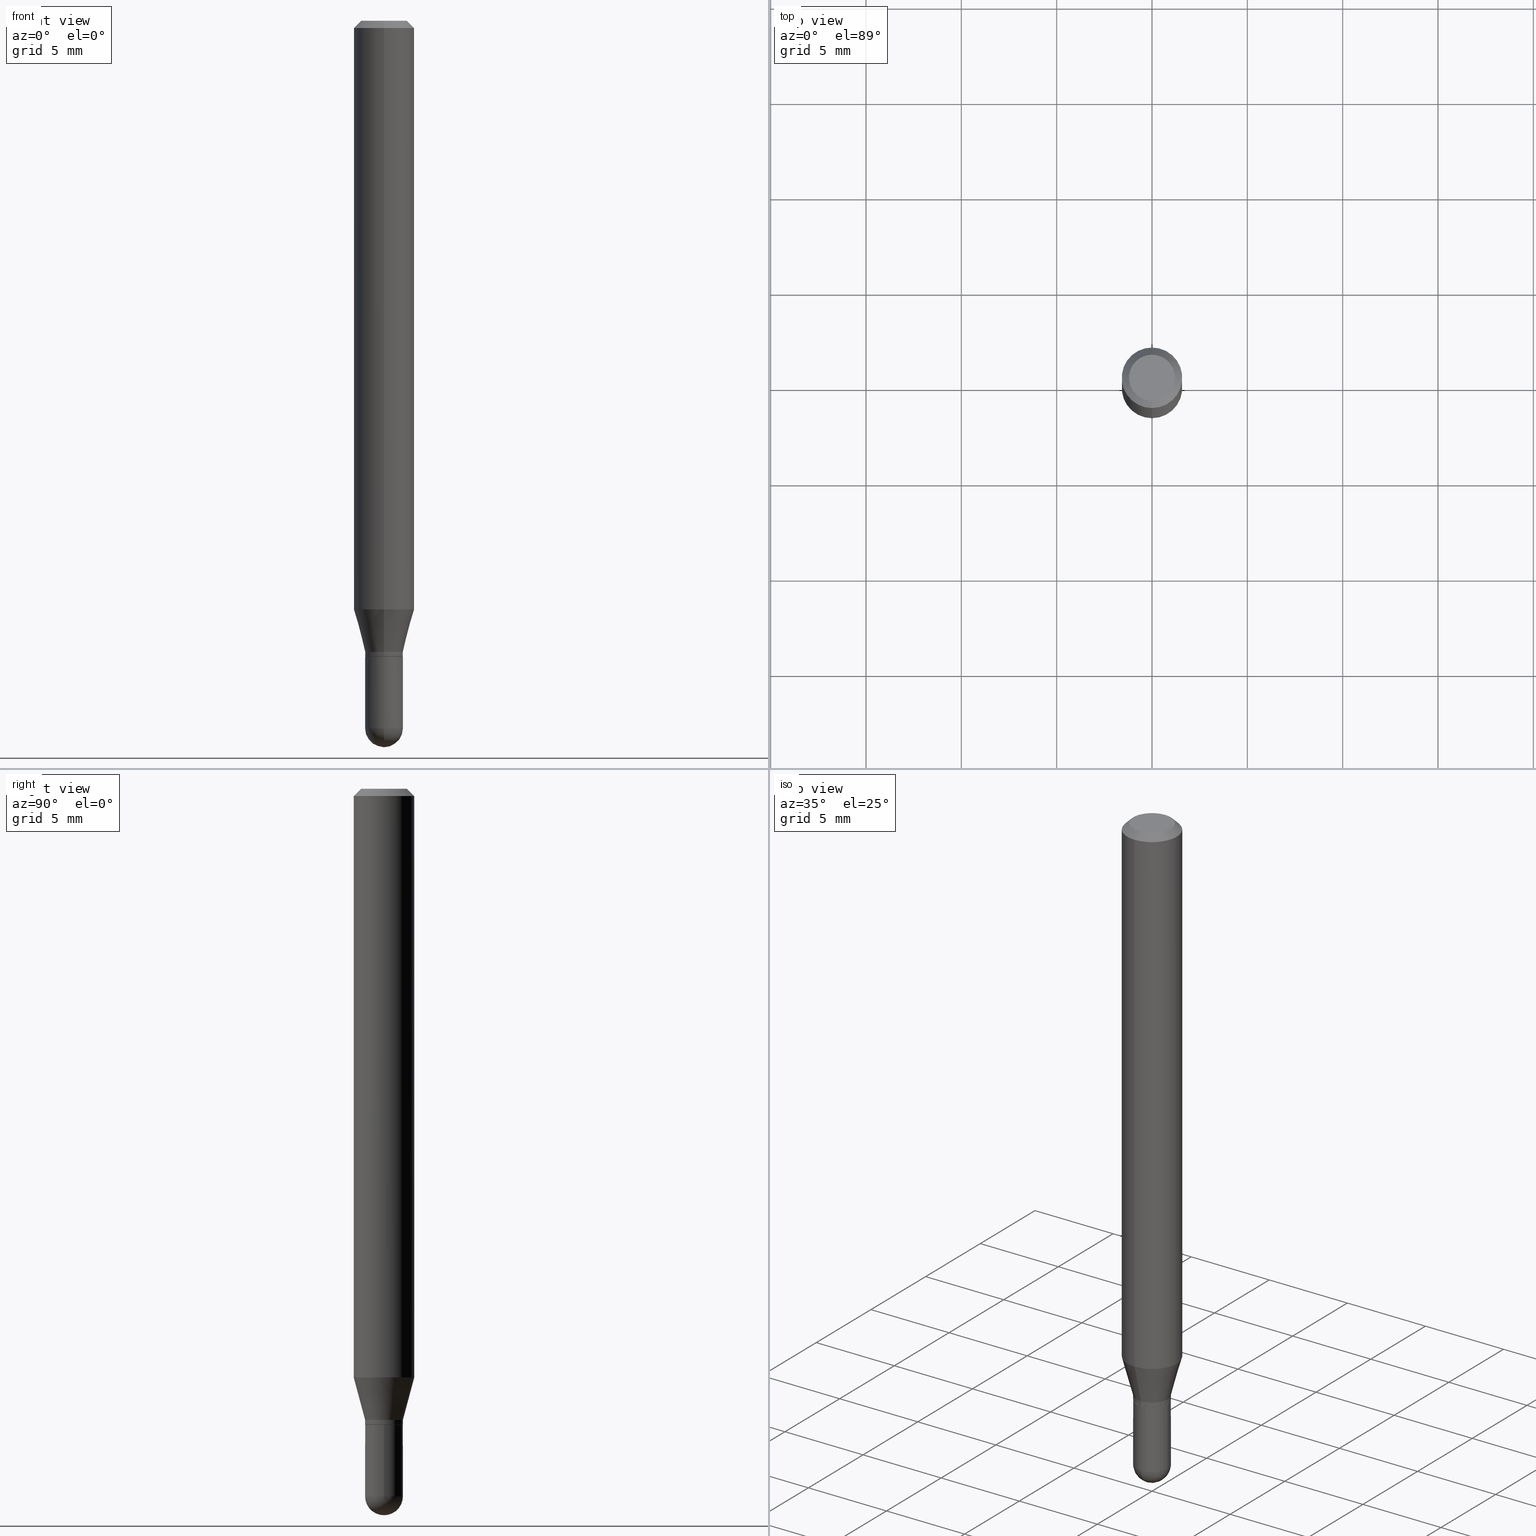
[diagram: canonical four-view strip — front | top / right | iso, engineering-drawing reading convention]
A machine part, canonical four-view strip (front | top / right | iso — engineering-drawing reading convention). The complete STEP part file that produces these views, byte-faithful:
ISO-10303-21;
HEADER;
FILE_DESCRIPTION (( 'STEP AP203' ),
    '1' );
FILE_NAME ('30110.STEP',
    '2024-03-08T15:18:05',
    ( '' ),
    ( '' ),
    'SwSTEP 2.0',
    'SolidWorks 2023',
    '' );
FILE_SCHEMA (( 'CONFIG_CONTROL_DESIGN' ));
ENDSEC;

DATA;
#1 = CARTESIAN_POINT ( 'NONE',  ( 3.663194072738837225E-29, -5.244395376890724291E-15, -1.500000000000000444 ) ) ;
#2 = VERTEX_POINT ( 'NONE', #47 ) ;
#3 = AXIS2_PLACEMENT_3D ( 'NONE', #484, #481, #261 ) ;
#4 = DATE_AND_TIME ( #456, #305 ) ;
#5 = ORIENTED_EDGE ( 'NONE', *, *, #62, .T. ) ;
#6 = CIRCLE ( 'NONE', #299, 0.06250000000000001388 ) ;
#7 = ORIENTED_EDGE ( 'NONE', *, *, #210, .F. ) ;
#8 = ORIENTED_EDGE ( 'NONE', *, *, #85, .T. ) ;
#9 = ORIENTED_EDGE ( 'NONE', *, *, #203, .T. ) ;
#10 = CARTESIAN_POINT ( 'NONE',  ( -4.364351673553621364E-16, -0.06250000000000427436, -1.215483408562511025 ) ) ;
#11 = VERTEX_POINT ( 'NONE', #164 ) ;
#12 = EDGE_LOOP ( 'NONE', ( #469, #436, #351, #120 ) ) ;
#13 = DIRECTION ( 'NONE',  ( -2.445715240831873182E-29, 3.491128430402830124E-15, 1.000000000000000000 ) ) ;
#14 = ADVANCED_BREP_SHAPE_REPRESENTATION ( '30110', ( #88, #76, #500 ), #306 ) ;
#15 = AXIS2_PLACEMENT_3D ( 'NONE', #209, #465, #86 ) ;
#16 = DIRECTION ( 'NONE',  ( -2.445715240831873182E-29, 3.491128430402830124E-15, 1.000000000000000000 ) ) ;
#17 = COORDINATED_UNIVERSAL_TIME_OFFSET ( 5, 0, .BEHIND. ) ;
#18 = ADVANCED_FACE ( 'NONE', ( #512 ), #82, .F. ) ;
#19 = DIRECTION ( 'NONE',  ( -6.982962677686265922E-15, -1.000000000000000000, 0.000000000000000000 ) ) ;
#20 = APPROVAL_ROLE ( '' ) ;
#21 = CARTESIAN_POINT ( 'NONE',  ( 3.210001253591834077E-29, -4.582106064903715326E-15, -1.312500000000000222 ) ) ;
#22 = APPROVAL_STATUS ( 'not_yet_approved' ) ;
#23 = CIRCLE ( 'NONE', #430, 0.03905000000000000832 ) ;
#24 = CARTESIAN_POINT ( 'NONE',  ( -2.691932112247734171E-16, -0.03855000000000458060, -1.313000000000000389 ) ) ;
#25 = PRODUCT_DEFINITION ( 'UNKNOWN', '', #178, #155 ) ;
#26 = PERSON_AND_ORGANIZATION ( #113, #370 ) ;
#27 = ORIENTED_EDGE ( 'NONE', *, *, #329, .F. ) ;
#28 = CARTESIAN_POINT ( 'NONE',  ( 3.211224111212249912E-29, -4.583851629118917536E-15, -1.313000000000000389 ) ) ;
#29 = CARTESIAN_POINT ( 'NONE',  ( 2.774669383143552228E-16, 0.03904999999999496374, -1.460950000000000193 ) ) ;
#30 = DIRECTION ( 'NONE',  ( -6.982962677686265922E-15, -1.000000000000000000, 0.000000000000000000 ) ) ;
#31 = AXIS2_PLACEMENT_3D ( 'NONE', #290, #220, #95 ) ;
#32 = UNCERTAINTY_MEASURE_WITH_UNIT (LENGTH_MEASURE( 1.000000000000000082E-05 ), #81, 'distance_accuracy_value', 'NONE');
#33 = AXIS2_PLACEMENT_3D ( 'NONE', #160, #429, #213 ) ;
#34 = CONICAL_SURFACE ( 'NONE', #186, 0.06250000000000001388, 0.7853981633974473908 ) ;
#35 = CARTESIAN_POINT ( 'NONE',  ( 3.211224111212249912E-29, -4.583851629118917536E-15, -1.313000000000000389 ) ) ;
#36 = ADVANCED_FACE ( 'NONE', ( #42 ), #72, .T. ) ;
#37 = ORIENTED_EDGE ( 'NONE', *, *, #453, .T. ) ;
#38 = PLANE ( 'NONE',  #279 ) ;
#39 = ORIENTED_EDGE ( 'NONE', *, *, #449, .F. ) ;
#40 = ADVANCED_FACE ( 'NONE', ( #285 ), #94, .T. ) ;
#41 =( NAMED_UNIT ( * ) PLANE_ANGLE_UNIT ( ) SI_UNIT ( $, .RADIAN. ) );
#42 = FACE_OUTER_BOUND ( 'NONE', #51, .T. ) ;
#43 = APPROVAL ( #22, 'UNSPECIFIED' ) ;
#44 = CIRCLE ( 'NONE', #332, 0.06250000000000000000 ) ;
#45 = EDGE_CURVE ( 'NONE', #464, #211, #501, .T. ) ;
#46 = DIRECTION ( 'NONE',  ( -2.445468806185136597E-29, 3.491481338843145583E-15, 1.000000000000000000 ) ) ;
#47 = CARTESIAN_POINT ( 'NONE',  ( 4.440892098500924943E-16, 0.06249999999999995837, -0.01500000000000057711 ) ) ;
#48 = DIRECTION ( 'NONE',  ( -6.982962677686265922E-15, -1.000000000000000000, 3.491128430402830124E-15 ) ) ;
#49 = ORIENTED_EDGE ( 'NONE', *, *, #459, .T. ) ;
#50 = PERSON_AND_ORGANIZATION ( #113, #370 ) ;
#51 = EDGE_LOOP ( 'NONE', ( #395, #310, #399, #241 ) ) ;
#52 = DIRECTION ( 'NONE',  ( -6.982962677686265922E-15, -1.000000000000000000, 0.000000000000000000 ) ) ;
#53 = ORIENTED_EDGE ( 'NONE', *, *, #258, .T. ) ;
#54 = ORIENTED_EDGE ( 'NONE', *, *, #232, .F. ) ;
#55 = CARTESIAN_POINT ( 'NONE',  ( 0.000000000000000000, 0.000000000000000000, 0.000000000000000000 ) ) ;
#56 = EDGE_CURVE ( 'NONE', #11, #427, #326, .T. ) ;
#57 = ORIENTED_EDGE ( 'NONE', *, *, #380, .F. ) ;
#58 = ORIENTED_EDGE ( 'NONE', *, *, #472, .F. ) ;
#59 = DIRECTION ( 'NONE',  ( -2.445468806185136877E-29, 3.491481338843145188E-15, 1.000000000000000000 ) ) ;
#60 = LINE ( 'NONE', #292, #215 ) ;
#61 = CIRCLE ( 'NONE', #245, 0.03905000000000000138 ) ;
#62 = EDGE_CURVE ( 'NONE', #427, #11, #385, .T. ) ;
#63 = VECTOR ( 'NONE', #511, 39.37007874015748143 ) ;
#64 = CARTESIAN_POINT ( 'NONE',  ( 8.758191564929115309E-45, -1.250185265265728213E-30, -3.581034872216010807E-16 ) ) ;
#65 = AXIS2_PLACEMENT_3D ( 'NONE', #318, #91, #52 ) ;
#66 = COORDINATED_UNIVERSAL_TIME_OFFSET ( 5, 0, .BEHIND. ) ;
#67 = CARTESIAN_POINT ( 'NONE',  ( -2.726846925636181991E-16, -0.03905000000000474758, -1.303000000000000380 ) ) ;
#68 = APPROVAL_ROLE ( '' ) ;
#69 = CARTESIAN_POINT ( 'NONE',  ( -2.726846925636500494E-16, -0.03905000000000019567, 1.363285652072311966E-16 ) ) ;
#70 = CALENDAR_DATE ( 2024, 8, 3 ) ;
#71 = FACE_OUTER_BOUND ( 'NONE', #176, .T. ) ;
#72 = CONICAL_SURFACE ( 'NONE', #283, 0.06250000000000001388, 0.7853981633974473908 ) ;
#73 = EDGE_CURVE ( 'NONE', #388, #282, #298, .T. ) ;
#74 = DIRECTION ( 'NONE',  ( 2.438088387897960049E-29, -3.491481338843145188E-15, -1.000000000000000000 ) ) ;
#75 = DIRECTION ( 'NONE',  ( -6.982962677686265133E-15, -1.000000000000000000, 0.000000000000000000 ) ) ;
#76 = MANIFOLD_SOLID_BREP ( 'Body-Move/Copy2[2]', #161 ) ;
#77 = DIRECTION ( 'NONE',  ( -2.445715240831873463E-29, 3.491128430402830124E-15, 1.000000000000000000 ) ) ;
#78 = AXIS2_PLACEMENT_3D ( 'NONE', #328, #331, #224 ) ;
#79 = AXIS2_PLACEMENT_3D ( 'NONE', #366, #13, #177 ) ;
#80 = PRODUCT_DEFINITION_SHAPE ( 'NONE', 'NONE',  #25 ) ;
#81 =( CONVERSION_BASED_UNIT ( 'INCH', #316 ) LENGTH_UNIT ( ) NAMED_UNIT ( #243 ) );
#82 = PLANE ( 'NONE',  #223 ) ;
#83 = EDGE_CURVE ( 'NONE', #426, #137, #136, .T. ) ;
#84 = ORIENTED_EDGE ( 'NONE', *, *, #278, .T. ) ;
#85 = EDGE_CURVE ( 'NONE', #388, #381, #60, .T. ) ;
#86 = DIRECTION ( 'NONE',  ( 1.000000000000000000, -6.982962677686266711E-15, 0.000000000000000000 ) ) ;
#87 = ORIENTED_EDGE ( 'NONE', *, *, #486, .T. ) ;
#88 = MANIFOLD_SOLID_BREP ( 'Body-Move/Copy2[1]', #121 ) ;
#89 = PRODUCT_RELATED_PRODUCT_CATEGORY ( 'detail', '', ( #200 ) ) ;
#90 = DIRECTION ( 'NONE',  ( -4.937700262164674260E-15, -0.7071067811865632269, 0.7071067811865319186 ) ) ;
#91 = DIRECTION ( 'NONE',  ( -1.000000000000000000, 6.982962677686265922E-15, -4.883557194083112340E-29 ) ) ;
#92 = DIRECTION ( 'NONE',  ( -6.982962677686265133E-15, -1.000000000000000000, 0.000000000000000000 ) ) ;
#93 = VERTEX_POINT ( 'NONE', #441 ) ;
#94 = SPHERICAL_SURFACE ( 'NONE', #33, 0.03905000000000012628 ) ;
#95 = DIRECTION ( 'NONE',  ( 1.000000000000000000, -6.982962677686265133E-15, 0.000000000000000000 ) ) ;
#96 = ORIENTED_EDGE ( 'NONE', *, *, #122, .F. ) ;
#97 = ORIENTED_EDGE ( 'NONE', *, *, #100, .F. ) ;
#98 = DIRECTION ( 'NONE',  ( -6.982962677686265922E-15, -1.000000000000000000, 3.483106191921934765E-15 ) ) ;
#99 = DIRECTION ( 'NONE',  ( -1.807323732225331323E-15, -0.2588190451025183525, 0.9659258262890689783 ) ) ;
#100 = EDGE_CURVE ( 'NONE', #507, #211, #23, .T. ) ;
#101 = DIRECTION ( 'NONE',  ( -6.982962677686265922E-15, -1.000000000000000000, 0.000000000000000000 ) ) ;
#102 = AXIS2_PLACEMENT_3D ( 'NONE', #21, #443, #101 ) ;
#103 = FACE_OUTER_BOUND ( 'NONE', #168, .T. ) ;
#104 = AXIS2_PLACEMENT_3D ( 'NONE', #502, #493, #304 ) ;
#105 = DATE_AND_TIME ( #70, #458 ) ;
#106 = DIRECTION ( 'NONE',  ( -2.445715240831873182E-29, 3.491128430402830124E-15, 1.000000000000000000 ) ) ;
#107 = MECHANICAL_CONTEXT ( 'NONE', #126, 'mechanical' ) ;
#108 = EDGE_CURVE ( 'NONE', #252, #249, #256, .T. ) ;
#109 = DIRECTION ( 'NONE',  ( -6.982962677686265922E-15, -1.000000000000000000, 3.491128430402830124E-15 ) ) ;
#110 = APPROVAL_PERSON_ORGANIZATION ( #227, #272, #20 ) ;
#111 = EDGE_LOOP ( 'NONE', ( #58, #454, #49, #314 ) ) ;
#112 = CARTESIAN_POINT ( 'NONE',  ( 3.840629472727450339E-16, 0.04750000000000004219, -5.239320876657356674E-16 ) ) ;
#113 = PERSON ( 'UNSPECIFIED', 'UNSPECIFIED', 'UNSPECIFIED', ('UNSPECIFIED'), ('UNSPECIFIED'), ('UNSPECIFIED') ) ;
#114 = VERTEX_POINT ( 'NONE', #410 ) ;
#115 = CARTESIAN_POINT ( 'NONE',  ( -2.726846925636134167E-16, -0.03905000000000517085, -1.460950000000000193 ) ) ;
#116 = ADVANCED_FACE ( 'NONE', ( #407 ), #255, .T. ) ;
#117 = DIRECTION ( 'NONE',  ( 1.000000000000000000, -6.982962677686265133E-15, 0.000000000000000000 ) ) ;
#118 = CARTESIAN_POINT ( 'NONE',  ( 3.569368228036930558E-29, -5.105661907733563837E-15, -1.460950000000000193 ) ) ;
#119 = AXIS2_PLACEMENT_3D ( 'NONE', #270, #422, #75 ) ;
#120 = ORIENTED_EDGE ( 'NONE', *, *, #134, .T. ) ;
#121 = CLOSED_SHELL ( 'NONE', ( #162, #40, #333, #496, #116 ) ) ;
#122 = EDGE_CURVE ( 'NONE', #211, #388, #322, .T. ) ;
#123 = DIRECTION ( 'NONE',  ( -2.445715240831873182E-29, 3.491128430402830124E-15, 1.000000000000000000 ) ) ;
#124 = ORIENTED_EDGE ( 'NONE', *, *, #482, .T. ) ;
#125 = DIRECTION ( 'NONE',  ( -2.445468806185136877E-29, 3.491481338843145188E-15, 1.000000000000000000 ) ) ;
#126 = APPLICATION_CONTEXT ( 'configuration controlled 3d designs of mechanical parts and assemblies' ) ;
#127 = DIRECTION ( 'NONE',  ( 2.445715240831872622E-29, -3.491128430402830124E-15, -1.000000000000000000 ) ) ;
#128 = CARTESIAN_POINT ( 'NONE',  ( -2.726846925636188894E-16, -0.03905000000000491411, -1.312500000000000222 ) ) ;
#129 = EDGE_LOOP ( 'NONE', ( #446, #239 ) ) ;
#130 = AXIS2_PLACEMENT_3D ( 'NONE', #163, #435, #313 ) ;
#131 = ORIENTED_EDGE ( 'NONE', *, *, #73, .T. ) ;
#132 = CARTESIAN_POINT ( 'NONE',  ( 3.668572861247897004E-31, -5.236692645604369505E-17, -0.01500000000000035853 ) ) ;
#133 = DIRECTION ( 'NONE',  ( 1.000000000000000000, -6.982962677686265133E-15, 0.000000000000000000 ) ) ;
#134 = EDGE_CURVE ( 'NONE', #2, #244, #383, .T. ) ;
#135 = DIRECTION ( 'NONE',  ( -2.445468806185136597E-29, 3.491481338843145583E-15, 1.000000000000000000 ) ) ;
#136 = LINE ( 'NONE', #67, #425 ) ;
#137 = VERTEX_POINT ( 'NONE', #10 ) ;
#138 = FACE_OUTER_BOUND ( 'NONE', #384, .T. ) ;
#139 = APPROVAL_DATE_TIME ( #264, #247 ) ;
#140 = FACE_OUTER_BOUND ( 'NONE', #483, .T. ) ;
#141 = COORDINATED_UNIVERSAL_TIME_OFFSET ( 5, 0, .BEHIND. ) ;
#142 = CIRCLE ( 'NONE', #214, 0.03905000000000000832 ) ;
#143 = CARTESIAN_POINT ( 'NONE',  ( 3.186766958803931544E-29, -4.548940344814889109E-15, -1.303000000000000380 ) ) ;
#144 = DATE_TIME_ROLE ( 'creation_date' ) ;
#145 = ADVANCED_FACE ( 'NONE', ( #402 ), #492, .T. ) ;
#146 = CARTESIAN_POINT ( 'NONE',  ( 3.572707652396175485E-29, -5.100879661982893620E-15, -1.460950000000000193 ) ) ;
#147 = APPROVAL_STATUS ( 'not_yet_approved' ) ;
#148 = FACE_OUTER_BOUND ( 'NONE', #111, .T. ) ;
#149 = APPLICATION_CONTEXT ( 'configuration controlled 3d designs of mechanical parts and assemblies' ) ;
#150 = CC_DESIGN_SECURITY_CLASSIFICATION ( #400, ( #178 ) ) ;
#151 = CC_DESIGN_PERSON_AND_ORGANIZATION_ASSIGNMENT ( #50, #262, ( #178 ) ) ;
#152 = DIRECTION ( 'NONE',  ( -6.982962677686265133E-15, -1.000000000000000000, 0.000000000000000000 ) ) ;
#153 = ADVANCED_FACE ( 'NONE', ( #103 ), #375, .T. ) ;
#154 = DIRECTION ( 'NONE',  ( -2.445715240831873182E-29, 3.491128430402830124E-15, 1.000000000000000000 ) ) ;
#155 = DESIGN_CONTEXT ( 'detailed design', #149, 'design' ) ;
#156 = ORIENTED_EDGE ( 'NONE', *, *, #56, .F. ) ;
#157 = EDGE_CURVE ( 'NONE', #249, #252, #291, .T. ) ;
#158 = CARTESIAN_POINT ( 'NONE',  ( -0.03905000000000000832, 2.774669383143191817E-16, -1.920844152744540988E-30 ) ) ;
#159 = AXIS2_PLACEMENT_3D ( 'NONE', #55, #174, #216 ) ;
#160 = CARTESIAN_POINT ( 'NONE',  ( 3.569368228036930558E-29, -5.105661907733563837E-15, -1.460950000000000193 ) ) ;
#161 = CLOSED_SHELL ( 'NONE', ( #202, #248, #36, #170, #145, #153, #294, #289, #18, #405, #225, #367 ) ) ;
#162 = ADVANCED_FACE ( 'NONE', ( #140 ), #219, .T. ) ;
#163 = CARTESIAN_POINT ( 'NONE',  ( 3.569368228036930558E-29, -5.105661907733563837E-15, -1.460950000000000193 ) ) ;
#164 = CARTESIAN_POINT ( 'NONE',  ( 2.774669383143515743E-16, 0.03904999999999547722, -1.312500000000000222 ) ) ;
#165 = CARTESIAN_POINT ( 'NONE',  ( 0.03905000000000000832, -5.115282022505621222E-15, -1.460950000000000193 ) ) ;
#166 = DIRECTION ( 'NONE',  ( 6.982962677686265922E-15, 1.000000000000000000, -3.491128430402830124E-15 ) ) ;
#167 = CARTESIAN_POINT ( 'NONE',  ( 3.211224111212249912E-29, -4.583851629118917536E-15, -1.313000000000000389 ) ) ;
#168 = EDGE_LOOP ( 'NONE', ( #477, #53, #275, #207 ) ) ;
#169 = AXIS2_PLACEMENT_3D ( 'NONE', #445, #16, #364 ) ;
#170 = ADVANCED_FACE ( 'NONE', ( #414 ), #295, .T. ) ;
#171 = AXIS2_PLACEMENT_3D ( 'NONE', #417, #74, #233 ) ;
#172 = APPLICATION_PROTOCOL_DEFINITION ( 'international standard', 'config_control_design', 1994, #149 ) ;
#173 = ORIENTED_EDGE ( 'NONE', *, *, #56, .T. ) ;
#174 = DIRECTION ( 'NONE',  ( -2.445468806185136597E-29, 3.491481338843145583E-15, 1.000000000000000000 ) ) ;
#175 = EDGE_CURVE ( 'NONE', #137, #114, #296, .T. ) ;
#176 = EDGE_LOOP ( 'NONE', ( #84, #87, #394, #57 ) ) ;
#177 = DIRECTION ( 'NONE',  ( -6.982962677686265922E-15, -1.000000000000000000, 4.370956789862821150E-15 ) ) ;
#178 = PRODUCT_DEFINITION_FORMATION_WITH_SPECIFIED_SOURCE ( 'ANY', '', #200, .NOT_KNOWN. ) ;
#179 = VECTOR ( 'NONE', #125, 39.37007874015748143 ) ;
#180 = CARTESIAN_POINT ( 'NONE',  ( -4.287811248607204268E-16, -0.06250000000000006939, -0.01500000000000014169 ) ) ;
#181 = SECURITY_CLASSIFICATION_LEVEL ( 'unclassified' ) ;
#182 = CARTESIAN_POINT ( 'NONE',  ( 3.186766958803931544E-29, -4.548940344814889109E-15, -1.303000000000000380 ) ) ;
#183 = APPROVAL_DATE_TIME ( #4, #43 ) ;
#184 = CARTESIAN_POINT ( 'NONE',  ( -3.773273898774342241E-16, -0.04750000000000004219, -1.922748867774664941E-16 ) ) ;
#185 = APPLICATION_PROTOCOL_DEFINITION ( 'international standard', 'config_control_design', 1994, #126 ) ;
#186 = AXIS2_PLACEMENT_3D ( 'NONE', #348, #307, #231 ) ;
#187 = FACE_OUTER_BOUND ( 'NONE', #365, .T. ) ;
#188 = DIRECTION ( 'NONE',  ( 0.000000000000000000, 0.000000000000000000, 1.000000000000000000 ) ) ;
#189 = CARTESIAN_POINT ( 'NONE',  ( 2.774669383143523138E-16, 0.03904999999999564375, -1.303000000000000380 ) ) ;
#190 = CC_DESIGN_PERSON_AND_ORGANIZATION_ASSIGNMENT ( #361, #479, ( #200 ) ) ;
#191 = EDGE_CURVE ( 'NONE', #249, #244, #487, .T. ) ;
#192 = CARTESIAN_POINT ( 'NONE',  ( 3.607780740822223794E-16, 0.03904999999999564375, -1.303000000000000380 ) ) ;
#193 = CONICAL_SURFACE ( 'NONE', #119, 0.03855000000000000093, 0.7853981633974739252 ) ;
#194 = CIRCLE ( 'NONE', #485, 0.03855000000000000093 ) ;
#195 = ORIENTED_EDGE ( 'NONE', *, *, #45, .F. ) ;
#196 = CARTESIAN_POINT ( 'NONE',  ( 3.186766958803931544E-29, -4.548940344814889109E-15, -1.303000000000000380 ) ) ;
#197 = DIRECTION ( 'NONE',  ( -2.445715240831872622E-29, 3.491128430402830124E-15, 1.000000000000000000 ) ) ;
#198 = ORIENTED_EDGE ( 'NONE', *, *, #329, .T. ) ;
#199 = DIRECTION ( 'NONE',  ( -2.445715240831873463E-29, 3.491128430402830124E-15, 1.000000000000000000 ) ) ;
#200 = PRODUCT ( '30110', '30110', '', ( #107 ) ) ;
#201 = ORIENTED_EDGE ( 'NONE', *, *, #434, .F. ) ;
#202 = ADVANCED_FACE ( 'NONE', ( #138 ), #293, .T. ) ;
#203 = EDGE_CURVE ( 'NONE', #217, #114, #497, .T. ) ;
#204 = VECTOR ( 'NONE', #77, 39.37007874015748143 ) ;
#205 = ORIENTED_EDGE ( 'NONE', *, *, #83, .F. ) ;
#206 = CARTESIAN_POINT ( 'NONE',  ( 0.03905000000000000138, -4.856999690464699711E-15, -1.313000000000000167 ) ) ;
#207 = ORIENTED_EDGE ( 'NONE', *, *, #504, .F. ) ;
#208 = CC_DESIGN_DATE_AND_TIME_ASSIGNMENT ( #396, #144, ( #25 ) ) ;
#209 = CARTESIAN_POINT ( 'NONE',  ( 3.210900542521084585E-29, -4.584314997901050598E-15, -1.313000000000000167 ) ) ;
#210 = EDGE_CURVE ( 'NONE', #282, #507, #142, .T. ) ;
#211 = VERTEX_POINT ( 'NONE', #115 ) ;
#212 = CC_DESIGN_APPROVAL ( #43, ( #178 ) ) ;
#213 = DIRECTION ( 'NONE',  ( -6.982962677686265922E-15, -1.000000000000000000, 0.000000000000000000 ) ) ;
#214 = AXIS2_PLACEMENT_3D ( 'NONE', #146, #420, #117 ) ;
#215 = VECTOR ( 'NONE', #59, 39.37007874015748143 ) ;
#216 = DIRECTION ( 'NONE',  ( 1.000000000000000000, -6.982962677686266711E-15, 4.876176775795935232E-29 ) ) ;
#217 = VERTEX_POINT ( 'NONE', #192 ) ;
#218 = ORIENTED_EDGE ( 'NONE', *, *, #449, .T. ) ;
#219 = CYLINDRICAL_SURFACE ( 'NONE', #159, 0.03905000000000000832 ) ;
#220 = DIRECTION ( 'NONE',  ( -2.445468806185136597E-29, 3.491481338843145583E-15, 1.000000000000000000 ) ) ;
#221 = AXIS2_PLACEMENT_3D ( 'NONE', #494, #455, #109 ) ;
#222 = DATE_TIME_ROLE ( 'classification_date' ) ;
#223 = AXIS2_PLACEMENT_3D ( 'NONE', #390, #127, #166 ) ;
#224 = DIRECTION ( 'NONE',  ( 1.000000000000000000, -6.982962677686265133E-15, 0.000000000000000000 ) ) ;
#225 = ADVANCED_FACE ( 'NONE', ( #269 ), #363, .T. ) ;
#226 = DIRECTION ( 'NONE',  ( -2.445715240831873182E-29, 3.491128430402830124E-15, 1.000000000000000000 ) ) ;
#227 = PERSON_AND_ORGANIZATION ( #113, #370 ) ;
#228 = LINE ( 'NONE', #345, #327 ) ;
#229 = LOCAL_TIME ( 10, 18, 5.000000000000000000, #415 ) ;
#230 = PERSON_AND_ORGANIZATION ( #113, #370 ) ;
#231 = DIRECTION ( 'NONE',  ( 6.982962677686265922E-15, 1.000000000000000000, -3.483106191921934765E-15 ) ) ;
#232 = EDGE_CURVE ( 'NONE', #11, #217, #450, .T. ) ;
#233 = DIRECTION ( 'NONE',  ( -1.000000000000000000, 6.982962677686265922E-15, -4.876176775795935793E-29 ) ) ;
#234 = DIRECTION ( 'NONE',  ( -2.445715240831873182E-29, 3.491128430402830124E-15, 1.000000000000000000 ) ) ;
#235 = AXIS2_PLACEMENT_3D ( 'NONE', #64, #337, #489 ) ;
#236 = FACE_OUTER_BOUND ( 'NONE', #12, .T. ) ;
#237 = VECTOR ( 'NONE', #90, 39.37007874015748143 ) ;
#238 = EDGE_LOOP ( 'NONE', ( #437, #397, #471, #321 ) ) ;
#239 = ORIENTED_EDGE ( 'NONE', *, *, #482, .F. ) ;
#240 = CARTESIAN_POINT ( 'NONE',  ( -0.03905000000000000832, -4.565130391627653569E-15, -1.460950000000000193 ) ) ;
#241 = ORIENTED_EDGE ( 'NONE', *, *, #317, .F. ) ;
#242 =( NAMED_UNIT ( * ) SI_UNIT ( $, .STERADIAN. ) SOLID_ANGLE_UNIT ( ) );
#243 = DIMENSIONAL_EXPONENTS ( 1.000000000000000000, 0.000000000000000000, 0.000000000000000000, 0.000000000000000000, 0.000000000000000000, 0.000000000000000000, 0.000000000000000000 ) ;
#244 = VERTEX_POINT ( 'NONE', #339 ) ;
#245 = AXIS2_PLACEMENT_3D ( 'NONE', #349, #46, #470 ) ;
#246 = VERTEX_POINT ( 'NONE', #344 ) ;
#247 = APPROVAL ( #147, 'UNSPECIFIED' ) ;
#248 = ADVANCED_FACE ( 'NONE', ( #71 ), #193, .T. ) ;
#249 = VERTEX_POINT ( 'NONE', #184 ) ;
#250 = DIRECTION ( 'NONE',  ( -6.982962677686265922E-15, -1.000000000000000000, 3.483106191921934765E-15 ) ) ;
#251 = ORIENTED_EDGE ( 'NONE', *, *, #122, .T. ) ;
#252 = VERTEX_POINT ( 'NONE', #112 ) ;
#253 = LINE ( 'NONE', #350, #63 ) ;
#254 = ORIENTED_EDGE ( 'NONE', *, *, #45, .T. ) ;
#255 = CYLINDRICAL_SURFACE ( 'NONE', #508, 0.03905000000000000832 ) ;
#256 = CIRCLE ( 'NONE', #499, 0.04750000000000004219 ) ;
#257 = DIRECTION ( 'NONE',  ( -2.445715240831873182E-29, 3.491128430402830124E-15, 1.000000000000000000 ) ) ;
#258 = EDGE_CURVE ( 'NONE', #217, #426, #412, .T. ) ;
#259 = CARTESIAN_POINT ( 'NONE',  ( 3.572707652396175485E-29, -5.100879661982893620E-15, -1.460950000000000193 ) ) ;
#260 = CARTESIAN_POINT ( 'NONE',  ( 0.000000000000000000, 0.000000000000000000, 0.000000000000000000 ) ) ;
#261 = DIRECTION ( 'NONE',  ( -6.982962677686265922E-15, -1.000000000000000000, 0.000000000000000000 ) ) ;
#262 = PERSON_AND_ORGANIZATION_ROLE ( 'creator' ) ;
#263 = CARTESIAN_POINT ( 'NONE',  ( 0.000000000000000000, 0.000000000000000000, 0.000000000000000000 ) ) ;
#264 = DATE_AND_TIME ( #408, #281 ) ;
#265 = DIRECTION ( 'NONE',  ( -2.445715240831873182E-29, 3.491128430402830124E-15, 1.000000000000000000 ) ) ;
#266 = LINE ( 'NONE', #377, #237 ) ;
#267 = AXIS2_PLACEMENT_3D ( 'NONE', #118, #393, #280 ) ;
#268 = CYLINDRICAL_SURFACE ( 'NONE', #104, 0.06250000000000001388 ) ;
#269 = FACE_OUTER_BOUND ( 'NONE', #358, .T. ) ;
#270 = CARTESIAN_POINT ( 'NONE',  ( 3.211224111212249912E-29, -4.583851629118917536E-15, -1.313000000000000389 ) ) ;
#271 = CIRCLE ( 'NONE', #476, 0.03855000000000000093 ) ;
#272 = APPROVAL ( #376, 'UNSPECIFIED' ) ;
#273 = EDGE_LOOP ( 'NONE', ( #218, #451 ) ) ;
#274 = SPHERICAL_SURFACE ( 'NONE', #130, 0.03905000000000012628 ) ;
#275 = ORIENTED_EDGE ( 'NONE', *, *, #83, .T. ) ;
#276 = CARTESIAN_POINT ( 'NONE',  ( 2.739142246355506265E-16, 0.03854999999999541432, -1.313000000000000389 ) ) ;
#277 = ORIENTED_EDGE ( 'NONE', *, *, #157, .T. ) ;
#278 = EDGE_CURVE ( 'NONE', #362, #93, #271, .T. ) ;
#279 = AXIS2_PLACEMENT_3D ( 'NONE', #35, #197, #48 ) ;
#280 = DIRECTION ( 'NONE',  ( 7.105427357601000281E-15, 1.000000000000000000, 0.000000000000000000 ) ) ;
#281 = LOCAL_TIME ( 10, 18, 5.000000000000000000, #141 ) ;
#282 = VERTEX_POINT ( 'NONE', #29 ) ;
#283 = AXIS2_PLACEMENT_3D ( 'NONE', #132, #354, #510 ) ;
#284 = CARTESIAN_POINT ( 'NONE',  ( 2.972726297299607962E-29, -4.243408684315521466E-15, -1.215483408562511247 ) ) ;
#285 = FACE_OUTER_BOUND ( 'NONE', #308, .T. ) ;
#286 = ORIENTED_EDGE ( 'NONE', *, *, #100, .T. ) ;
#287 = DIRECTION ( 'NONE',  ( -2.445715240831873182E-29, 3.491128430402830124E-15, 1.000000000000000000 ) ) ;
#288 = ORIENTED_EDGE ( 'NONE', *, *, #380, .T. ) ;
#289 = ADVANCED_FACE ( 'NONE', ( #236 ), #34, .T. ) ;
#290 = CARTESIAN_POINT ( 'NONE',  ( 3.572707652396175485E-29, -5.100879661982893620E-15, -1.460950000000000193 ) ) ;
#291 = CIRCLE ( 'NONE', #235, 0.04750000000000004219 ) ;
#292 = CARTESIAN_POINT ( 'NONE',  ( 0.03905000000000000832, -2.726846925636487675E-16, 1.904147030948313202E-30 ) ) ;
#293 = CYLINDRICAL_SURFACE ( 'NONE', #360, 0.03905000000000019567 ) ;
#294 = ADVANCED_FACE ( 'NONE', ( #148 ), #268, .T. ) ;
#295 = CYLINDRICAL_SURFACE ( 'NONE', #169, 0.06250000000000001388 ) ;
#296 = CIRCLE ( 'NONE', #79, 0.06250000000000000000 ) ;
#297 = PERSON_AND_ORGANIZATION_ROLE ( 'creator' ) ;
#298 = CIRCLE ( 'NONE', #78, 0.03905000000000000832 ) ;
#299 = AXIS2_PLACEMENT_3D ( 'NONE', #428, #391, #250 ) ;
#300 = DIRECTION ( 'NONE',  ( -6.982962677686265922E-15, -1.000000000000000000, 0.000000000000000000 ) ) ;
#301 = APPROVAL_ROLE ( '' ) ;
#302 = DIRECTION ( 'NONE',  ( 4.937700262164543309E-15, 0.7071067811865444641, -0.7071067811865505703 ) ) ;
#303 = CALENDAR_DATE ( 2024, 8, 3 ) ;
#304 = DIRECTION ( 'NONE',  ( -6.982962677686265133E-15, -1.000000000000000000, 3.491128430402829729E-15 ) ) ;
#305 = LOCAL_TIME ( 10, 18, 5.000000000000000000, #452 ) ;
#306 =( GEOMETRIC_REPRESENTATION_CONTEXT ( 3 ) GLOBAL_UNCERTAINTY_ASSIGNED_CONTEXT ( ( #32 ) ) GLOBAL_UNIT_ASSIGNED_CONTEXT ( ( #81, #41, #242 ) ) REPRESENTATION_CONTEXT ( 'NONE', 'WORKASPACE' ) );
#307 = DIRECTION ( 'NONE',  ( 2.445715240831873182E-29, -3.491128430402830124E-15, -1.000000000000000000 ) ) ;
#308 = EDGE_LOOP ( 'NONE', ( #195, #466, #392, #96 ) ) ;
#309 = FACE_OUTER_BOUND ( 'NONE', #273, .T. ) ;
#310 = ORIENTED_EDGE ( 'NONE', *, *, #191, .T. ) ;
#311 =( LENGTH_UNIT ( ) NAMED_UNIT ( * ) SI_UNIT ( $, .METRE. ) );
#312 = CC_DESIGN_APPROVAL ( #272, ( #400 ) ) ;
#313 = DIRECTION ( 'NONE',  ( -6.982962677686265922E-15, -1.000000000000000000, 0.000000000000000000 ) ) ;
#314 = ORIENTED_EDGE ( 'NONE', *, *, #134, .F. ) ;
#315 = CC_DESIGN_PERSON_AND_ORGANIZATION_ASSIGNMENT ( #418, #297, ( #25 ) ) ;
#316 = LENGTH_MEASURE_WITH_UNIT ( LENGTH_MEASURE( 0.02539999999999999897 ), #311 );
#317 = EDGE_CURVE ( 'NONE', #252, #2, #228, .T. ) ;
#318 = CARTESIAN_POINT ( 'NONE',  ( 3.569368228036930558E-29, -5.105661907733563837E-15, -1.460950000000000193 ) ) ;
#319 = ORIENTED_EDGE ( 'NONE', *, *, #232, .T. ) ;
#320 = FACE_OUTER_BOUND ( 'NONE', #129, .T. ) ;
#321 = ORIENTED_EDGE ( 'NONE', *, *, #459, .F. ) ;
#322 = CIRCLE ( 'NONE', #31, 0.03905000000000000832 ) ;
#323 = LINE ( 'NONE', #276, #474 ) ;
#324 = ORIENTED_EDGE ( 'NONE', *, *, #85, .F. ) ;
#325 = ORIENTED_EDGE ( 'NONE', *, *, #416, .F. ) ;
#326 = CIRCLE ( 'NONE', #102, 0.03905000000000019567 ) ;
#327 = VECTOR ( 'NONE', #302, 39.37007874015748143 ) ;
#328 = CARTESIAN_POINT ( 'NONE',  ( 3.572707652396175485E-29, -5.100879661982893620E-15, -1.460950000000000193 ) ) ;
#329 = EDGE_CURVE ( 'NONE', #426, #217, #401, .T. ) ;
#330 = CARTESIAN_POINT ( 'NONE',  ( 8.758191564929115309E-45, -1.250185265265728213E-30, -3.581034872216010807E-16 ) ) ;
#331 = DIRECTION ( 'NONE',  ( -2.445468806185136597E-29, 3.491481338843145583E-15, 1.000000000000000000 ) ) ;
#332 = AXIS2_PLACEMENT_3D ( 'NONE', #284, #509, #503 ) ;
#333 = ADVANCED_FACE ( 'NONE', ( #309 ), #421, .F. ) ;
#334 = ORIENTED_EDGE ( 'NONE', *, *, #335, .T. ) ;
#335 = EDGE_CURVE ( 'NONE', #427, #426, #378, .T. ) ;
#336 = DIRECTION ( 'NONE',  ( -6.982962677686265922E-15, -1.000000000000000000, 0.000000000000000000 ) ) ;
#337 = DIRECTION ( 'NONE',  ( -2.445715240831873182E-29, 3.491128430402830124E-15, 1.000000000000000000 ) ) ;
#338 = PERSON_AND_ORGANIZATION_ROLE ( 'classification_officer' ) ;
#339 = CARTESIAN_POINT ( 'NONE',  ( -4.364351673553913736E-16, -0.06250000000000006939, -0.01500000000000014169 ) ) ;
#340 = AXIS2_PLACEMENT_3D ( 'NONE', #387, #423, #152 ) ;
#341 = DIRECTION ( 'NONE',  ( 1.000000000000000000, 0.000000000000000000, 0.000000000000000000 ) ) ;
#342 = DIRECTION ( 'NONE',  ( -6.982962677686265133E-15, -1.000000000000000000, 0.000000000000000000 ) ) ;
#343 = DATE_AND_TIME ( #373, #229 ) ;
#344 = CARTESIAN_POINT ( 'NONE',  ( -0.03905000000000000138, -4.565130391627653569E-15, -1.313000000000000167 ) ) ;
#345 = CARTESIAN_POINT ( 'NONE',  ( 4.364351673553921131E-16, 0.06249999999999996531, -0.01500000000000057711 ) ) ;
#346 = AXIS2_PLACEMENT_3D ( 'NONE', #182, #257, #19 ) ;
#347 = CIRCLE ( 'NONE', #267, 0.03905000000000012628 ) ;
#348 = CARTESIAN_POINT ( 'NONE',  ( 3.668572861247897004E-31, -5.236692645604369505E-17, -0.01500000000000035853 ) ) ;
#349 = CARTESIAN_POINT ( 'NONE',  ( 3.210900542521084585E-29, -4.584314997901050598E-15, -1.313000000000000167 ) ) ;
#350 = CARTESIAN_POINT ( 'NONE',  ( 4.440892098500626162E-16, 0.06250000000000001388, -2.181955269001769074E-16 ) ) ;
#351 = ORIENTED_EDGE ( 'NONE', *, *, #317, .T. ) ;
#352 = VECTOR ( 'NONE', #457, 39.37007874015748854 ) ;
#353 = CARTESIAN_POINT ( 'NONE',  ( -2.726846925636181991E-16, -0.03905000000000474758, -1.303000000000000380 ) ) ;
#354 = DIRECTION ( 'NONE',  ( 2.445715240831873182E-29, -3.491128430402830124E-15, -1.000000000000000000 ) ) ;
#355 = DIRECTION ( 'NONE',  ( 5.024295867788190974E-15, 0.7071067811865681119, 0.7071067811865270336 ) ) ;
#356 = EDGE_LOOP ( 'NONE', ( #424, #277 ) ) ;
#357 = LINE ( 'NONE', #505, #411 ) ;
#358 = EDGE_LOOP ( 'NONE', ( #478, #124, #288, #156 ) ) ;
#359 = CC_DESIGN_APPROVAL ( #247, ( #25 ) ) ;
#360 = AXIS2_PLACEMENT_3D ( 'NONE', #382, #154, #463 ) ;
#361 = PERSON_AND_ORGANIZATION ( #113, #370 ) ;
#362 = VERTEX_POINT ( 'NONE', #24 ) ;
#363 = CONICAL_SURFACE ( 'NONE', #340, 0.03855000000000000093, 0.7853981633974739252 ) ;
#364 = DIRECTION ( 'NONE',  ( -6.982962677686265133E-15, -1.000000000000000000, 3.491128430402829729E-15 ) ) ;
#365 = EDGE_LOOP ( 'NONE', ( #54, #173, #334, #419 ) ) ;
#366 = CARTESIAN_POINT ( 'NONE',  ( 2.972726297299607962E-29, -4.243408684315521466E-15, -1.215483408562511247 ) ) ;
#367 = ADVANCED_FACE ( 'NONE', ( #187 ), #462, .T. ) ;
#368 = CC_DESIGN_PERSON_AND_ORGANIZATION_ASSIGNMENT ( #448, #338, ( #400 ) ) ;
#369 = CARTESIAN_POINT ( 'NONE',  ( 3.186766958803931544E-29, -4.548940344814889109E-15, -1.303000000000000380 ) ) ;
#370 = ORGANIZATION ( 'UNSPECIFIED', 'UNSPECIFIED', '' ) ;
#371 = DIRECTION ( 'NONE',  ( 1.000000000000000000, -6.982962677686266711E-15, 4.876176775795935232E-29 ) ) ;
#372 = DIRECTION ( 'NONE',  ( -2.445468806185136597E-29, 3.491481338843145583E-15, 1.000000000000000000 ) ) ;
#373 = CALENDAR_DATE ( 2024, 8, 3 ) ;
#374 = DIRECTION ( 'NONE',  ( -2.445715240831873463E-29, 3.491128430402830124E-15, 1.000000000000000000 ) ) ;
#375 = CONICAL_SURFACE ( 'NONE', #467, 0.03905000000000019567, 0.2617993877991504625 ) ;
#376 = APPROVAL_STATUS ( 'not_yet_approved' ) ;
#377 = CARTESIAN_POINT ( 'NONE',  ( -2.691932112247734171E-16, -0.03855000000000458060, -1.313000000000000389 ) ) ;
#378 = LINE ( 'NONE', #69, #447 ) ;
#379 = CC_DESIGN_PERSON_AND_ORGANIZATION_ASSIGNMENT ( #26, #413, ( #178 ) ) ;
#380 = EDGE_CURVE ( 'NONE', #362, #427, #266, .T. ) ;
#381 = VERTEX_POINT ( 'NONE', #206 ) ;
#382 = CARTESIAN_POINT ( 'NONE',  ( 0.000000000000000000, 0.000000000000000000, 0.000000000000000000 ) ) ;
#383 = CIRCLE ( 'NONE', #409, 0.06250000000000001388 ) ;
#384 = EDGE_LOOP ( 'NONE', ( #5, #319, #27, #480 ) ) ;
#385 = CIRCLE ( 'NONE', #3, 0.03905000000000019567 ) ;
#386 = AXIS2_PLACEMENT_3D ( 'NONE', #143, #106, #300 ) ;
#387 = CARTESIAN_POINT ( 'NONE',  ( 3.211224111212249912E-29, -4.583851629118917536E-15, -1.313000000000000389 ) ) ;
#388 = VERTEX_POINT ( 'NONE', #165 ) ;
#389 = EDGE_LOOP ( 'NONE', ( #201, #254, #97, #7 ) ) ;
#390 = CARTESIAN_POINT ( 'NONE',  ( 3.316907271900979054E-16, 0.04750000000000004219, -3.448803440549351024E-16 ) ) ;
#391 = DIRECTION ( 'NONE',  ( -2.445715240831873182E-29, 3.491128430402830124E-15, 1.000000000000000000 ) ) ;
#392 = ORIENTED_EDGE ( 'NONE', *, *, #73, .F. ) ;
#393 = DIRECTION ( 'NONE',  ( 1.000000000000000000, -7.105427357601001070E-15, 4.926315508542082329E-29 ) ) ;
#394 = ORIENTED_EDGE ( 'NONE', *, *, #62, .F. ) ;
#395 = ORIENTED_EDGE ( 'NONE', *, *, #157, .F. ) ;
#396 = DATE_AND_TIME ( #303, #491 ) ;
#397 = ORIENTED_EDGE ( 'NONE', *, *, #472, .T. ) ;
#398 = EDGE_CURVE ( 'NONE', #244, #2, #6, .T. ) ;
#399 = ORIENTED_EDGE ( 'NONE', *, *, #398, .T. ) ;
#400 = SECURITY_CLASSIFICATION ( '', '', #181 ) ;
#401 = CIRCLE ( 'NONE', #386, 0.03905000000000019567 ) ;
#402 = FACE_OUTER_BOUND ( 'NONE', #433, .T. ) ;
#403 = ORIENTED_EDGE ( 'NONE', *, *, #175, .F. ) ;
#404 = DIRECTION ( 'NONE',  ( -2.445715240831873182E-29, 3.491128430402830124E-15, 1.000000000000000000 ) ) ;
#405 = ADVANCED_FACE ( 'NONE', ( #320 ), #38, .F. ) ;
#406 = CC_DESIGN_DATE_AND_TIME_ASSIGNMENT ( #105, #222, ( #400 ) ) ;
#407 = FACE_OUTER_BOUND ( 'NONE', #468, .T. ) ;
#408 = CALENDAR_DATE ( 2024, 8, 3 ) ;
#409 = AXIS2_PLACEMENT_3D ( 'NONE', #440, #226, #98 ) ;
#410 = CARTESIAN_POINT ( 'NONE',  ( 4.440892098500919026E-16, 0.06249999999999571176, -1.215483408562511469 ) ) ;
#411 = VECTOR ( 'NONE', #199, 39.37007874015748143 ) ;
#412 = CIRCLE ( 'NONE', #473, 0.03905000000000019567 ) ;
#413 = PERSON_AND_ORGANIZATION_ROLE ( 'design_supplier' ) ;
#414 = FACE_OUTER_BOUND ( 'NONE', #238, .T. ) ;
#415 = COORDINATED_UNIVERSAL_TIME_OFFSET ( 5, 0, .BEHIND. ) ;
#416 = EDGE_CURVE ( 'NONE', #246, #381, #61, .T. ) ;
#417 = CARTESIAN_POINT ( 'NONE',  ( 2.726846925636807657E-16, 0.03904999999999541477, -1.313000000000000167 ) ) ;
#418 = PERSON_AND_ORGANIZATION ( #113, #370 ) ;
#419 = ORIENTED_EDGE ( 'NONE', *, *, #258, .F. ) ;
#420 = DIRECTION ( 'NONE',  ( -2.445468806185136597E-29, 3.491481338843145583E-15, 1.000000000000000000 ) ) ;
#421 = PLANE ( 'NONE',  #171 ) ;
#422 = DIRECTION ( 'NONE',  ( -2.445715240831873182E-29, 3.491128430402830124E-15, 1.000000000000000000 ) ) ;
#423 = DIRECTION ( 'NONE',  ( -2.445715240831873182E-29, 3.491128430402830124E-15, 1.000000000000000000 ) ) ;
#424 = ORIENTED_EDGE ( 'NONE', *, *, #108, .T. ) ;
#425 = VECTOR ( 'NONE', #99, 39.37007874015748854 ) ;
#426 = VERTEX_POINT ( 'NONE', #353 ) ;
#427 = VERTEX_POINT ( 'NONE', #128 ) ;
#428 = CARTESIAN_POINT ( 'NONE',  ( 3.668572861247897004E-31, -5.236692645604369505E-17, -0.01500000000000035853 ) ) ;
#429 = DIRECTION ( 'NONE',  ( 1.000000000000000000, -6.982962677686265922E-15, 4.883557194083112340E-29 ) ) ;
#430 = AXIS2_PLACEMENT_3D ( 'NONE', #259, #135, #133 ) ;
#431 = APPROVAL_PERSON_ORGANIZATION ( #230, #247, #68 ) ;
#432 = LINE ( 'NONE', #158, #179 ) ;
#433 = EDGE_LOOP ( 'NONE', ( #198, #9, #403, #205 ) ) ;
#434 = EDGE_CURVE ( 'NONE', #464, #282, #347, .T. ) ;
#435 = DIRECTION ( 'NONE',  ( 1.000000000000000000, -6.982962677686265922E-15, 4.883557194083112340E-29 ) ) ;
#436 = ORIENTED_EDGE ( 'NONE', *, *, #108, .F. ) ;
#437 = ORIENTED_EDGE ( 'NONE', *, *, #175, .T. ) ;
#438 = DIRECTION ( 'NONE',  ( -6.982962677686265133E-15, -1.000000000000000000, 3.491128430402830124E-15 ) ) ;
#439 = ORIENTED_EDGE ( 'NONE', *, *, #453, .F. ) ;
#440 = CARTESIAN_POINT ( 'NONE',  ( 3.668572861247897004E-31, -5.236692645604369505E-17, -0.01500000000000035853 ) ) ;
#441 = CARTESIAN_POINT ( 'NONE',  ( 2.756905814749515687E-16, 0.03854999999999541432, -1.313000000000000389 ) ) ;
#442 = SHAPE_DEFINITION_REPRESENTATION ( #80, #14 ) ;
#443 = DIRECTION ( 'NONE',  ( -2.445715240831873182E-29, 3.491128430402830124E-15, 1.000000000000000000 ) ) ;
#444 = VECTOR ( 'NONE', #488, 39.37007874015748143 ) ;
#445 = CARTESIAN_POINT ( 'NONE',  ( 0.000000000000000000, 0.000000000000000000, 0.000000000000000000 ) ) ;
#446 = ORIENTED_EDGE ( 'NONE', *, *, #278, .F. ) ;
#447 = VECTOR ( 'NONE', #374, 39.37007874015748143 ) ;
#448 = PERSON_AND_ORGANIZATION ( #113, #370 ) ;
#449 = EDGE_CURVE ( 'NONE', #381, #246, #461, .T. ) ;
#450 = LINE ( 'NONE', #498, #204 ) ;
#451 = ORIENTED_EDGE ( 'NONE', *, *, #416, .T. ) ;
#452 = COORDINATED_UNIVERSAL_TIME_OFFSET ( 5, 0, .BEHIND. ) ;
#453 = EDGE_CURVE ( 'NONE', #507, #246, #432, .T. ) ;
#454 = ORIENTED_EDGE ( 'NONE', *, *, #504, .T. ) ;
#455 = DIRECTION ( 'NONE',  ( -2.445715240831873182E-29, 3.491128430402830124E-15, 1.000000000000000000 ) ) ;
#456 = CALENDAR_DATE ( 2024, 8, 3 ) ;
#457 = DIRECTION ( 'NONE',  ( 1.839019923739601499E-15, 0.2588190451025251249, 0.9659258262890670910 ) ) ;
#458 = LOCAL_TIME ( 10, 18, 5.000000000000000000, #66 ) ;
#459 = EDGE_CURVE ( 'NONE', #137, #244, #357, .T. ) ;
#460 = ORIENTED_EDGE ( 'NONE', *, *, #210, .T. ) ;
#461 = CIRCLE ( 'NONE', #15, 0.03905000000000000138 ) ;
#462 = CYLINDRICAL_SURFACE ( 'NONE', #221, 0.03905000000000019567 ) ;
#463 = DIRECTION ( 'NONE',  ( -6.982962677686265922E-15, -1.000000000000000000, 3.491128430402830124E-15 ) ) ;
#464 = VERTEX_POINT ( 'NONE', #1 ) ;
#465 = DIRECTION ( 'NONE',  ( -2.445468806185136597E-29, 3.491481338843145583E-15, 1.000000000000000000 ) ) ;
#466 = ORIENTED_EDGE ( 'NONE', *, *, #434, .T. ) ;
#467 = AXIS2_PLACEMENT_3D ( 'NONE', #369, #404, #336 ) ;
#468 = EDGE_LOOP ( 'NONE', ( #439, #286, #251, #8, #325 ) ) ;
#469 = ORIENTED_EDGE ( 'NONE', *, *, #191, .F. ) ;
#470 = DIRECTION ( 'NONE',  ( 1.000000000000000000, -6.982962677686266711E-15, 0.000000000000000000 ) ) ;
#471 = ORIENTED_EDGE ( 'NONE', *, *, #398, .F. ) ;
#472 = EDGE_CURVE ( 'NONE', #114, #2, #253, .T. ) ;
#473 = AXIS2_PLACEMENT_3D ( 'NONE', #196, #265, #30 ) ;
#474 = VECTOR ( 'NONE', #355, 39.37007874015748143 ) ;
#475 = FACE_OUTER_BOUND ( 'NONE', #389, .T. ) ;
#476 = AXIS2_PLACEMENT_3D ( 'NONE', #28, #234, #342 ) ;
#477 = ORIENTED_EDGE ( 'NONE', *, *, #203, .F. ) ;
#478 = ORIENTED_EDGE ( 'NONE', *, *, #486, .F. ) ;
#479 = PERSON_AND_ORGANIZATION_ROLE ( 'design_owner' ) ;
#480 = ORIENTED_EDGE ( 'NONE', *, *, #335, .F. ) ;
#481 = DIRECTION ( 'NONE',  ( -2.445715240831873182E-29, 3.491128430402830124E-15, 1.000000000000000000 ) ) ;
#482 = EDGE_CURVE ( 'NONE', #93, #362, #194, .T. ) ;
#483 = EDGE_LOOP ( 'NONE', ( #460, #37, #39, #324, #131 ) ) ;
#484 = CARTESIAN_POINT ( 'NONE',  ( 3.210001253591834077E-29, -4.582106064903715326E-15, -1.312500000000000222 ) ) ;
#485 = AXIS2_PLACEMENT_3D ( 'NONE', #167, #123, #92 ) ;
#486 = EDGE_CURVE ( 'NONE', #93, #11, #323, .T. ) ;
#487 = LINE ( 'NONE', #180, #444 ) ;
#488 = DIRECTION ( 'NONE',  ( -4.851104656540959542E-15, -0.7071067811865493491, -0.7071067811865456854 ) ) ;
#489 = DIRECTION ( 'NONE',  ( -6.982962677686265133E-15, -1.000000000000000000, 3.491128430402830124E-15 ) ) ;
#490 = PERSON_AND_ORGANIZATION ( #113, #370 ) ;
#491 = LOCAL_TIME ( 10, 18, 5.000000000000000000, #17 ) ;
#492 = CONICAL_SURFACE ( 'NONE', #346, 0.03905000000000019567, 0.2617993877991504625 ) ;
#493 = DIRECTION ( 'NONE',  ( -2.445715240831873182E-29, 3.491128430402830124E-15, 1.000000000000000000 ) ) ;
#494 = CARTESIAN_POINT ( 'NONE',  ( 0.000000000000000000, 0.000000000000000000, 0.000000000000000000 ) ) ;
#495 = APPROVAL_DATE_TIME ( #343, #272 ) ;
#496 = ADVANCED_FACE ( 'NONE', ( #475 ), #274, .T. ) ;
#497 = LINE ( 'NONE', #189, #352 ) ;
#498 = CARTESIAN_POINT ( 'NONE',  ( 2.774669383143204636E-16, 0.03905000000000019567, -1.363285652072311966E-16 ) ) ;
#499 = AXIS2_PLACEMENT_3D ( 'NONE', #330, #287, #438 ) ;
#500 = AXIS2_PLACEMENT_3D ( 'NONE', #260, #188, #341 ) ;
#501 = CIRCLE ( 'NONE', #65, 0.03905000000000012628 ) ;
#502 = CARTESIAN_POINT ( 'NONE',  ( 0.000000000000000000, 0.000000000000000000, 0.000000000000000000 ) ) ;
#503 = DIRECTION ( 'NONE',  ( -6.982962677686265922E-15, -1.000000000000000000, 4.370956789862821150E-15 ) ) ;
#504 = EDGE_CURVE ( 'NONE', #114, #137, #44, .T. ) ;
#505 = CARTESIAN_POINT ( 'NONE',  ( -4.364351673553916694E-16, -0.06250000000000001388, 2.181955269001769074E-16 ) ) ;
#506 = APPROVAL_PERSON_ORGANIZATION ( #490, #43, #301 ) ;
#507 = VERTEX_POINT ( 'NONE', #240 ) ;
#508 = AXIS2_PLACEMENT_3D ( 'NONE', #263, #372, #371 ) ;
#509 = DIRECTION ( 'NONE',  ( -2.445715240831873182E-29, 3.491128430402830124E-15, 1.000000000000000000 ) ) ;
#510 = DIRECTION ( 'NONE',  ( 6.982962677686265922E-15, 1.000000000000000000, -3.483106191921934765E-15 ) ) ;
#511 = DIRECTION ( 'NONE',  ( -2.445715240831873463E-29, 3.491128430402830124E-15, 1.000000000000000000 ) ) ;
#512 = FACE_OUTER_BOUND ( 'NONE', #356, .T. ) ;
ENDSEC;
END-ISO-10303-21;
